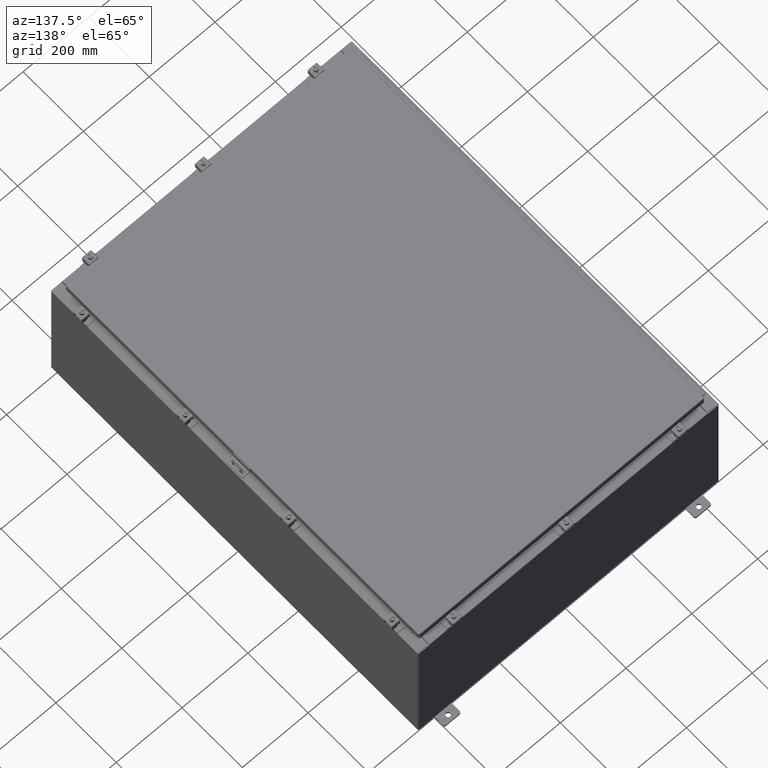
[diagram: clean part render]
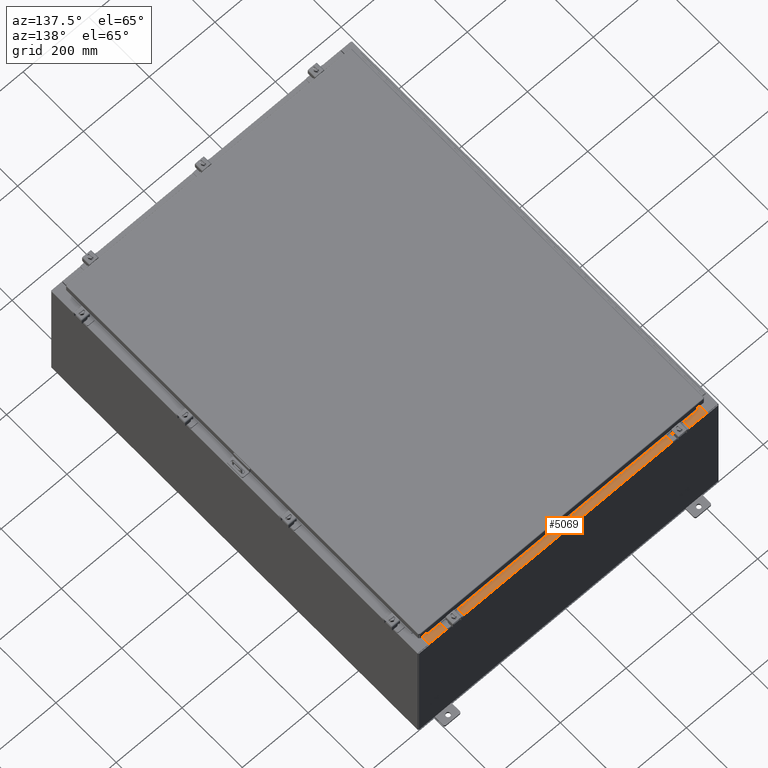
[diagram: same view with one face highlighted and labeled with its STEP entity id]
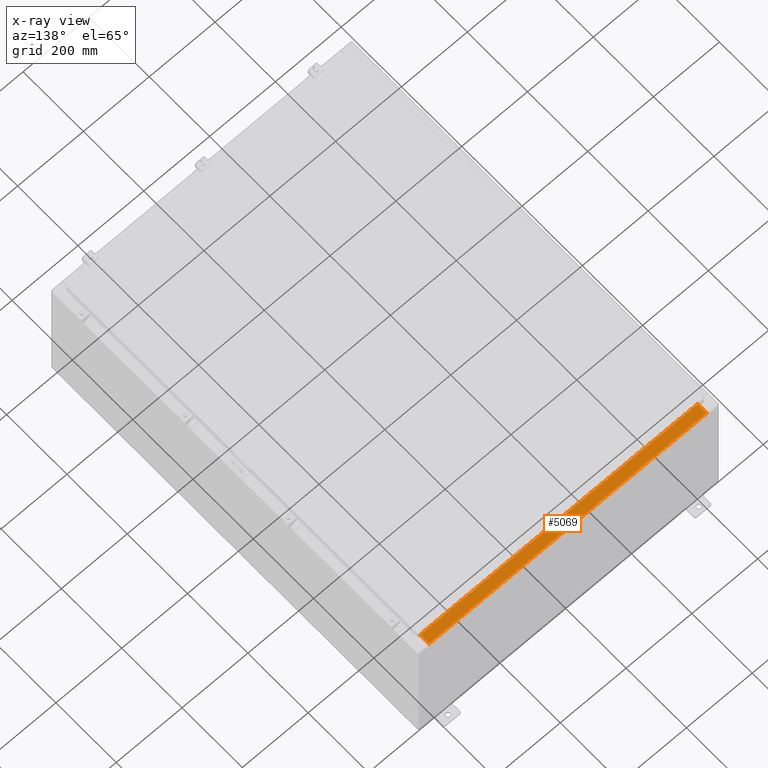
[diagram: x-ray of the same camera — body ghosted, the highlighted face saturated]
A machine part, auxiliary view. The second image highlights one B-rep face of the part: STEP entity #5069.
The next image is the same camera in x-ray: the body ghosted, the highlighted face saturated — about 0% of this face is hidden behind the body in this view.
In plain terms, the highlighted planar face has unit normal (0, 0, 1).
Its self-contained STEP definition (entity closure, byte-faithful):
#342 = ORIENTED_EDGE ( 'NONE', *, *, #27645, .F. ) ;
#2851 = EDGE_CURVE ( 'NONE', #42716, #33506, #22815, .T. ) ;
#5069 = ADVANCED_FACE ( 'NONE', ( #6855 ), #42578, .T. ) ;
#5114 = DIRECTION ( 'NONE',  ( -0.0000000000000000000, -1.000000000000000000, 3.566381192773190000E-015 ) ) ;
#5773 = CARTESIAN_POINT ( 'NONE',  ( 16.63720000000000000, -1.300299999999999800, 8.000000000000003600 ) ) ;
#6855 = FACE_OUTER_BOUND ( 'NONE', #40306, .T. ) ;
#6871 = VECTOR ( 'NONE', #8111, 39.37007874015748100 ) ;
#8111 = DIRECTION ( 'NONE',  ( -1.000000000000000000, 0.0000000000000000000, 0.0000000000000000000 ) ) ;
#12095 = ORIENTED_EDGE ( 'NONE', *, *, #21073, .F. ) ;
#13430 = CARTESIAN_POINT ( 'NONE',  ( 5.308514113925181600E-016, -0.08770000000000136000, 8.000000000000001800 ) ) ;
#16878 = LINE ( 'NONE', #13430, #47434 ) ;
#17590 = DIRECTION ( 'NONE',  ( -1.000000000000000000, -6.568047492761434800E-017, 6.568047492761457000E-017 ) ) ;
#20845 = VECTOR ( 'NONE', #24706, 39.37007874015748100 ) ;
#21073 = EDGE_CURVE ( 'NONE', #41043, #29830, #31840, .T. ) ;
#22815 = LINE ( 'NONE', #5773, #43533 ) ;
#23084 = CARTESIAN_POINT ( 'NONE',  ( -16.63720000000000000, -0.08770000000000136000, 8.000000000000001800 ) ) ;
#24706 = DIRECTION ( 'NONE',  ( -0.0000000000000000000, 1.000000000000000000, -3.566381192773190000E-015 ) ) ;
#27645 = EDGE_CURVE ( 'NONE', #33506, #41043, #40120, .T. ) ;
#28715 = CARTESIAN_POINT ( 'NONE',  ( 16.63720000000000400, -1.287300000000000300, 8.000000000000003600 ) ) ;
#29830 = VERTEX_POINT ( 'NONE', #23084 ) ;
#31451 = EDGE_CURVE ( 'NONE', #42716, #29830, #16878, .T. ) ;
#31840 = LINE ( 'NONE', #41194, #20845 ) ;
#33506 = VERTEX_POINT ( 'NONE', #41199 ) ;
#36505 = ORIENTED_EDGE ( 'NONE', *, *, #31451, .T. ) ;
#40120 = LINE ( 'NONE', #28715, #6871 ) ;
#40306 = EDGE_LOOP ( 'NONE', ( #12095, #342, #44231, #36505 ) ) ;
#41043 = VERTEX_POINT ( 'NONE', #41406 ) ;
#41194 = CARTESIAN_POINT ( 'NONE',  ( -16.63720000000000000, -0.07469999999999973900, 8.000000000000001800 ) ) ;
#41199 = CARTESIAN_POINT ( 'NONE',  ( 16.63720000000000000, -1.287300000000000300, 8.000000000000003600 ) ) ;
#41406 = CARTESIAN_POINT ( 'NONE',  ( -16.63720000000000000, -1.287299999999999400, 8.000000000000007100 ) ) ;
#41956 = CARTESIAN_POINT ( 'NONE',  ( 16.63720000000000400, -0.08770000000000102700, 8.000000000000000000 ) ) ;
#42452 = DIRECTION ( 'NONE',  ( 0.0000000000000000000, -1.000000000000000000, 3.566381192773190000E-015 ) ) ;
#42471 = DIRECTION ( 'NONE',  ( 6.568047492761433500E-017, 3.566381192773190000E-015, 1.000000000000000000 ) ) ;
#42522 = CARTESIAN_POINT ( 'NONE',  ( 5.250912337413644300E-016, 2.852545452309695200E-014, 8.000000000000001800 ) ) ;
#42578 = PLANE ( 'NONE',  #44523 ) ;
#42716 = VERTEX_POINT ( 'NONE', #41956 ) ;
#43533 = VECTOR ( 'NONE', #5114, 39.37007874015748100 ) ;
#44231 = ORIENTED_EDGE ( 'NONE', *, *, #2851, .F. ) ;
#44523 = AXIS2_PLACEMENT_3D ( 'NONE', #42522, #42471, #42452 ) ;
#47434 = VECTOR ( 'NONE', #17590, 39.37007874015748100 ) ;